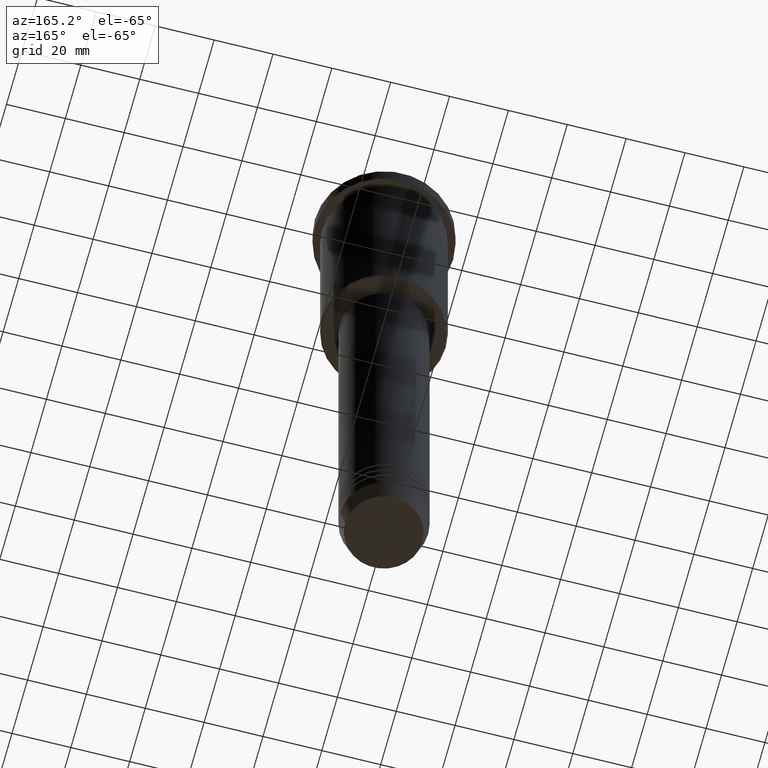
[diagram: clean part render]
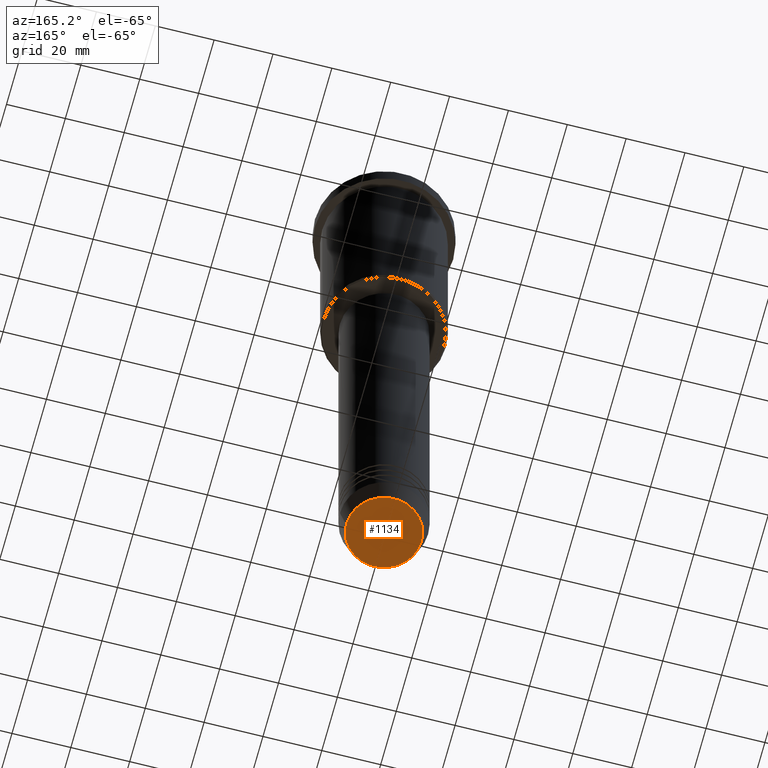
[diagram: same view with one face highlighted and labeled with its STEP entity id]
A machine part, auxiliary view. The second image highlights one B-rep face of the part: STEP entity #1134.
In plain terms, the highlighted planar face has unit normal (0, -0, 1).
Its self-contained STEP definition (entity closure, byte-faithful):
#3 = VERTEX_POINT ( 'NONE', #895 ) ;
#10 = CARTESIAN_POINT ( 'NONE',  ( 0.000000000000000000, 0.000000000000000000, -230.9999999999999716 ) ) ;
#35 = DIRECTION ( 'NONE',  ( 1.000000000000000000, 0.000000000000000000, 0.000000000000000000 ) ) ;
#169 = VERTEX_POINT ( 'NONE', #650 ) ;
#194 = CIRCLE ( 'NONE', #589, 12.74069215899265828 ) ;
#254 = EDGE_CURVE ( 'NONE', #3, #169, #194, .T. ) ;
#335 = DIRECTION ( 'NONE',  ( 1.000000000000000000, 0.000000000000000000, 0.000000000000000000 ) ) ;
#374 = CARTESIAN_POINT ( 'NONE',  ( 0.000000000000000000, 0.000000000000000000, -230.9999999999999716 ) ) ;
#455 = PLANE ( 'NONE',  #976 ) ;
#505 = EDGE_LOOP ( 'NONE', ( #706, #779 ) ) ;
#589 = AXIS2_PLACEMENT_3D ( 'NONE', #1142, #600, #335 ) ;
#600 = DIRECTION ( 'NONE',  ( 0.000000000000000000, 0.000000000000000000, -1.000000000000000000 ) ) ;
#650 = CARTESIAN_POINT ( 'NONE',  ( -12.74069215899265828, 1.589857736427681035E-15, -230.9999999999999716 ) ) ;
#706 = ORIENTED_EDGE ( 'NONE', *, *, #254, .T. ) ;
#732 = DIRECTION ( 'NONE',  ( 0.000000000000000000, -0.000000000000000000, 1.000000000000000000 ) ) ;
#755 = FACE_OUTER_BOUND ( 'NONE', #505, .T. ) ;
#779 = ORIENTED_EDGE ( 'NONE', *, *, #830, .T. ) ;
#805 = CIRCLE ( 'NONE', #1057, 12.74069215899265828 ) ;
#812 = DIRECTION ( 'NONE',  ( 1.000000000000000000, 0.000000000000000000, 0.000000000000000000 ) ) ;
#830 = EDGE_CURVE ( 'NONE', #169, #3, #805, .T. ) ;
#854 = DIRECTION ( 'NONE',  ( 0.000000000000000000, 0.000000000000000000, -1.000000000000000000 ) ) ;
#895 = CARTESIAN_POINT ( 'NONE',  ( 12.74069215899265828, 0.000000000000000000, -230.9999999999999716 ) ) ;
#976 = AXIS2_PLACEMENT_3D ( 'NONE', #10, #732, #812 ) ;
#1057 = AXIS2_PLACEMENT_3D ( 'NONE', #374, #854, #35 ) ;
#1134 = ADVANCED_FACE ( 'NONE', ( #755 ), #455, .F. ) ;
#1142 = CARTESIAN_POINT ( 'NONE',  ( 0.000000000000000000, 0.000000000000000000, -230.9999999999999716 ) ) ;